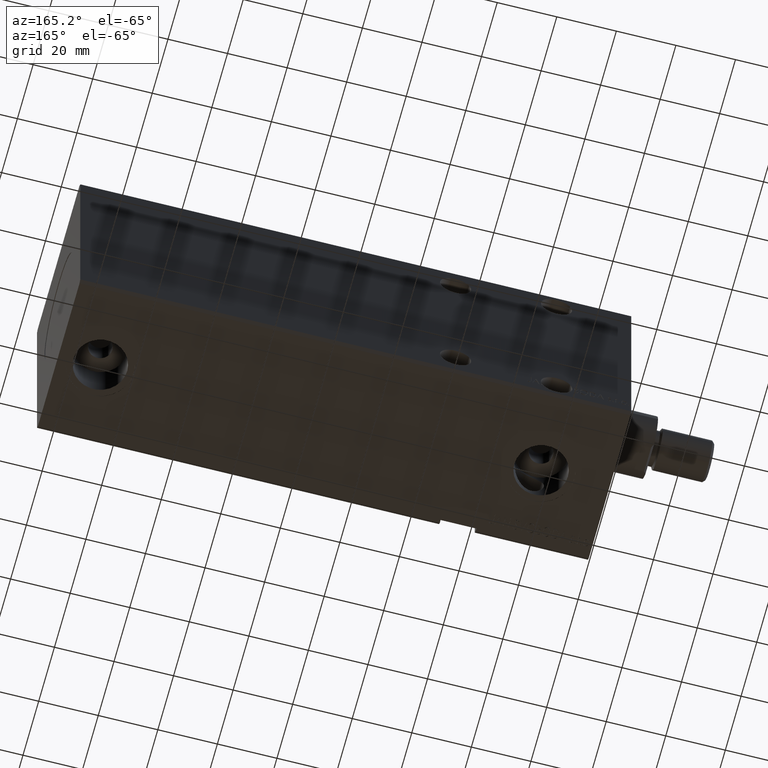
[diagram: clean part render]
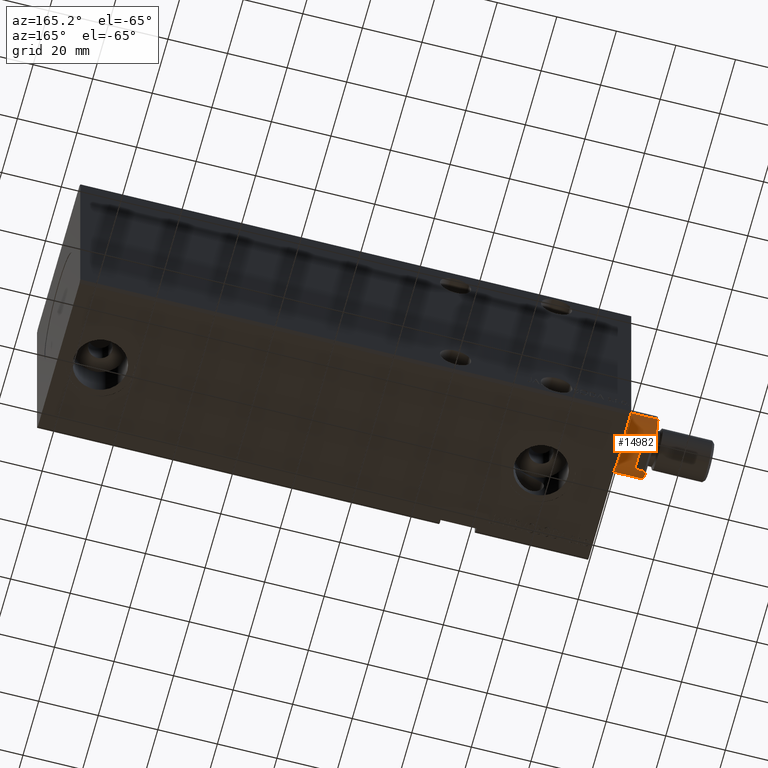
[diagram: same view with one face highlighted and labeled with its STEP entity id]
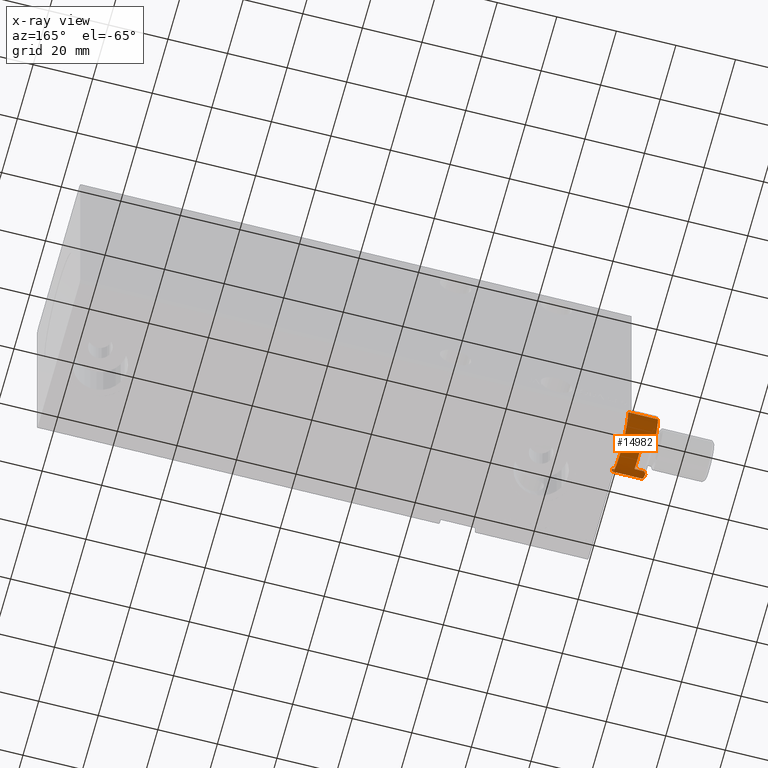
[diagram: x-ray of the same camera — body ghosted, the highlighted face saturated]
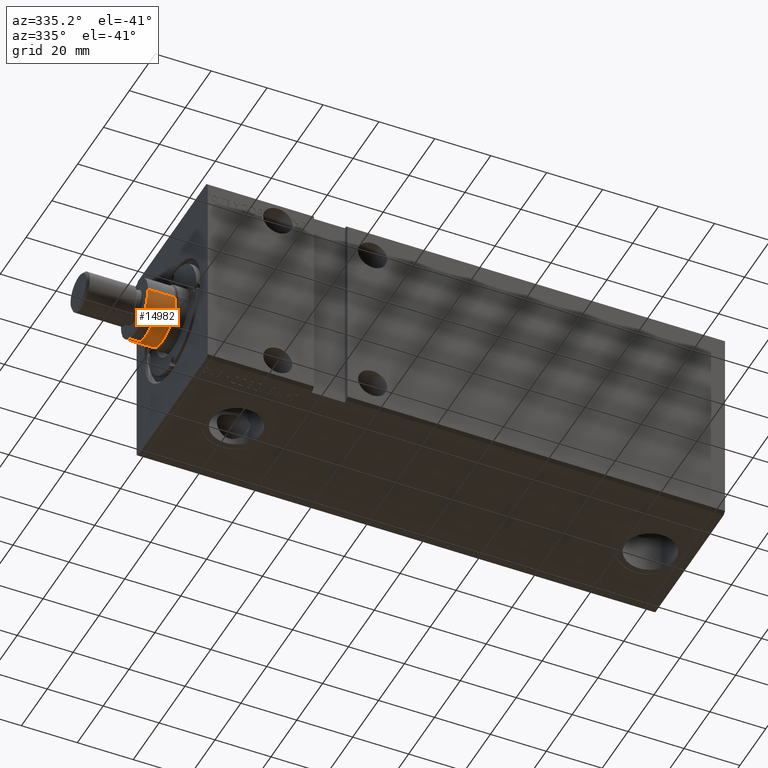
[diagram: same view with one face highlighted and labeled with its STEP entity id]
A machine part, auxiliary view. The second image highlights one B-rep face of the part: STEP entity #14982.
The next image is the same camera in x-ray: the body ghosted, the highlighted face saturated — about 2% of this face is hidden behind the body in this view.
A second angle (auxiliary view) of the same face is appended — the face is thin or edge-on in the first view.
In plain terms, the highlighted cylindrical surface (edge-blend (fillet) strip) has radius 10.46 mm, axis along (-1, -0, -0).
Its self-contained STEP definition (entity closure, byte-faithful):
#661 = CARTESIAN_POINT ( 'NONE',  ( 0.000000000000000000, -10.46000000000003105, 168.5000000000000000 ) ) ;
#707 = EDGE_CURVE ( 'NONE', #7318, #32483, #17686, .T. ) ;
#826 = DIRECTION ( 'NONE',  ( -0.000000000000000000, -1.830961800348780351E-16, 1.000000000000000000 ) ) ;
#1792 = LINE ( 'NONE', #10871, #26539 ) ;
#2046 = DIRECTION ( 'NONE',  ( 1.000000000000000000, 0.000000000000000000, 0.000000000000000000 ) ) ;
#2072 = CARTESIAN_POINT ( 'NONE',  ( -8.790000000000025793, -5.669876541865786379, 168.5000000000000000 ) ) ;
#2582 = DIRECTION ( 'NONE',  ( 0.000000000000000000, -1.000000000000000000, 0.000000000000000000 ) ) ;
#2622 = CARTESIAN_POINT ( 'NONE',  ( 0.000000000000000000, -3.085170633587695342E-14, 168.5000000000000000 ) ) ;
#2735 = CARTESIAN_POINT ( 'NONE',  ( -9.500000000000000000, 4.377396486497395323, 168.5000000000000000 ) ) ;
#2817 = CYLINDRICAL_SURFACE ( 'NONE', #39082, 10.46000000000000085 ) ;
#4140 = CARTESIAN_POINT ( 'NONE',  ( 1.280980551908131527E-15, 10.45999999999996888, 168.5000000000000000 ) ) ;
#4779 = CARTESIAN_POINT ( 'NONE',  ( -9.293949384395547852, 4.824575729748583619, 167.9960506156045312 ) ) ;
#5041 = CARTESIAN_POINT ( 'NONE',  ( 0.000000000000000000, 10.45999999999996888, 158.5000000000000000 ) ) ;
#5459 = EDGE_CURVE ( 'NONE', #9058, #21041, #8423, .T. ) ;
#5583 = LINE ( 'NONE', #5785, #37330 ) ;
#5785 = CARTESIAN_POINT ( 'NONE',  ( -9.500000000000000000, -4.377396486497458383, 168.5000000000000000 ) ) ;
#7318 = VERTEX_POINT ( 'NONE', #25877 ) ;
#7375 = EDGE_CURVE ( 'NONE', #29689, #9058, #31918, .T. ) ;
#7726 = CARTESIAN_POINT ( 'NONE',  ( -9.293949384395544300, -4.824575729748650232, 167.9960506156045312 ) ) ;
#8025 = DIRECTION ( 'NONE',  ( -0.000000000000000000, -1.830961800348780351E-16, 1.000000000000000000 ) ) ;
#8254 = ORIENTED_EDGE ( 'NONE', *, *, #28032, .F. ) ;
#8423 = LINE ( 'NONE', #20765, #9569 ) ;
#8653 = EDGE_CURVE ( 'NONE', #9762, #10954, #5583, .T. ) ;
#8668 = FACE_OUTER_BOUND ( 'NONE', #28902, .T. ) ;
#9040 = DIRECTION ( 'NONE',  ( -0.000000000000000000, -1.830961800348780351E-16, 1.000000000000000000 ) ) ;
#9058 = VERTEX_POINT ( 'NONE', #9522 ) ;
#9237 = CARTESIAN_POINT ( 'NONE',  ( 0.000000000000000000, -3.085170633587695342E-14, 168.5000000000000000 ) ) ;
#9522 = CARTESIAN_POINT ( 'NONE',  ( 1.314046015485110656E-15, -10.46000000000002750, 158.5000000000000000 ) ) ;
#9569 = VECTOR ( 'NONE', #30059, 1000.000000000000000 ) ;
#9762 = VERTEX_POINT ( 'NONE', #20712 ) ;
#10083 = CARTESIAN_POINT ( 'NONE',  ( -8.790000000000025793, -5.669876541865786379, 168.5000000000000000 ) ) ;
#10198 = ORIENTED_EDGE ( 'NONE', *, *, #707, .T. ) ;
#10291 = DIRECTION ( 'NONE',  ( 0.000000000000000000, -1.000000000000000000, 0.000000000000000000 ) ) ;
#10871 = CARTESIAN_POINT ( 'NONE',  ( 1.280980551908131527E-15, 10.45999999999996888, 168.5000000000000000 ) ) ;
#10954 = VERTEX_POINT ( 'NONE', #17884 ) ;
#11048 = ORIENTED_EDGE ( 'NONE', *, *, #18947, .F. ) ;
#12237 = DIRECTION ( 'NONE',  ( 0.000000000000000000, -1.000000000000000000, 0.000000000000000000 ) ) ;
#12439 = LINE ( 'NONE', #2735, #31305 ) ;
#14074 = CARTESIAN_POINT ( 'NONE',  ( -9.500000000000000000, 4.377396486497395323, 167.7900000000000489 ) ) ;
#14982 = ADVANCED_FACE ( 'NONE', ( #8668 ), #2817, .T. ) ;
#15152 = DIRECTION ( 'NONE',  ( 0.000000000000000000, -1.000000000000000000, 0.000000000000000000 ) ) ;
#15973 = ORIENTED_EDGE ( 'NONE', *, *, #8653, .T. ) ;
#17686 =( BOUNDED_CURVE ( )  B_SPLINE_CURVE ( 3, ( #14074, #4779, #20729, #23982 ),
 .UNSPECIFIED., .F., .T. ) 
 B_SPLINE_CURVE_WITH_KNOTS ( ( 4, 4 ),
 ( 3.573373807102883770, 3.714471135698162563 ),
 .UNSPECIFIED. ) 
 CURVE ( )  GEOMETRIC_REPRESENTATION_ITEM ( )  RATIONAL_B_SPLINE_CURVE ( ( 1.000000000000000000, 0.9983416499762386431, 0.9983416499762386431, 1.000000000000000000 ) ) 
 REPRESENTATION_ITEM ( '' )  );
#17812 = CARTESIAN_POINT ( 'NONE',  ( -9.056889589612573843, -5.256118063110211125, 168.2331104103874964 ) ) ;
#17884 = CARTESIAN_POINT ( 'NONE',  ( -9.500000000000000000, -4.377396486497457495, 164.5000000000000000 ) ) ;
#18006 = ORIENTED_EDGE ( 'NONE', *, *, #7375, .T. ) ;
#18705 = ORIENTED_EDGE ( 'NONE', *, *, #28212, .F. ) ;
#18947 = EDGE_CURVE ( 'NONE', #27408, #10954, #38214, .T. ) ;
#19192 = CIRCLE ( 'NONE', #26308, 10.46000000000000085 ) ;
#19305 = ORIENTED_EDGE ( 'NONE', *, *, #21137, .F. ) ;
#19772 = VERTEX_POINT ( 'NONE', #4140 ) ;
#20712 = CARTESIAN_POINT ( 'NONE',  ( -9.500000000000000000, -4.377396486497458383, 167.7900000000000489 ) ) ;
#20729 = CARTESIAN_POINT ( 'NONE',  ( -9.056889589612575620, 5.256118063110147176, 168.2331104103874964 ) ) ;
#20765 = CARTESIAN_POINT ( 'NONE',  ( 0.000000000000000000, -10.46000000000003105, 168.5000000000000000 ) ) ;
#21041 = VERTEX_POINT ( 'NONE', #661 ) ;
#21137 = EDGE_CURVE ( 'NONE', #29689, #19772, #1792, .T. ) ;
#23040 = ORIENTED_EDGE ( 'NONE', *, *, #36368, .T. ) ;
#23379 =( BOUNDED_CURVE ( )  B_SPLINE_CURVE ( 3, ( #2072, #17812, #7726, #36019 ),
 .UNSPECIFIED., .F., .T. ) 
 B_SPLINE_CURVE_WITH_KNOTS ( ( 4, 4 ),
 ( 2.568714171481423669, 2.709811500076702018 ),
 .UNSPECIFIED. ) 
 CURVE ( )  GEOMETRIC_REPRESENTATION_ITEM ( )  RATIONAL_B_SPLINE_CURVE ( ( 1.000000000000000000, 0.9983416499762386431, 0.9983416499762386431, 1.000000000000000000 ) ) 
 REPRESENTATION_ITEM ( '' )  );
#23982 = CARTESIAN_POINT ( 'NONE',  ( -8.790000000000025793, 5.669876541865724207, 168.5000000000000000 ) ) ;
#24169 = CARTESIAN_POINT ( 'NONE',  ( 0.000000000000000000, -3.085170633587695342E-14, 168.5000000000000000 ) ) ;
#24173 = DIRECTION ( 'NONE',  ( -0.000000000000000000, -1.830961800348780351E-16, 1.000000000000000000 ) ) ;
#24675 = DIRECTION ( 'NONE',  ( -0.000000000000000000, -1.830961800348780351E-16, 1.000000000000000000 ) ) ;
#25474 = CARTESIAN_POINT ( 'NONE',  ( 0.000000000000000000, -2.902074453552816907E-14, 158.5000000000000000 ) ) ;
#25476 = AXIS2_PLACEMENT_3D ( 'NONE', #25474, #826, #10291 ) ;
#25877 = CARTESIAN_POINT ( 'NONE',  ( -9.500000000000000000, 4.377396486497395323, 167.7900000000000489 ) ) ;
#26245 = ORIENTED_EDGE ( 'NONE', *, *, #5459, .T. ) ;
#26308 = AXIS2_PLACEMENT_3D ( 'NONE', #9237, #9040, #2582 ) ;
#26539 = VECTOR ( 'NONE', #8025, 1000.000000000000000 ) ;
#26828 = DIRECTION ( 'NONE',  ( 0.000000000000000000, 1.830961800348780351E-16, -1.000000000000000000 ) ) ;
#26928 = AXIS2_PLACEMENT_3D ( 'NONE', #24169, #33461, #12237 ) ;
#27408 = VERTEX_POINT ( 'NONE', #33453 ) ;
#27724 = VERTEX_POINT ( 'NONE', #10083 ) ;
#28032 = EDGE_CURVE ( 'NONE', #27724, #21041, #19192, .T. ) ;
#28212 = EDGE_CURVE ( 'NONE', #19772, #32483, #32715, .T. ) ;
#28902 = EDGE_LOOP ( 'NONE', ( #19305, #18006, #26245, #8254, #34977, #15973, #11048, #23040, #10198, #18705 ) ) ;
#29689 = VERTEX_POINT ( 'NONE', #5041 ) ;
#29731 = DIRECTION ( 'NONE',  ( 0.000000000000000000, 0.000000000000000000, 1.000000000000000000 ) ) ;
#30059 = DIRECTION ( 'NONE',  ( -0.000000000000000000, -1.830961800348780351E-16, 1.000000000000000000 ) ) ;
#30214 = EDGE_CURVE ( 'NONE', #27724, #9762, #23379, .T. ) ;
#31305 = VECTOR ( 'NONE', #24173, 1000.000000000000000 ) ;
#31918 = CIRCLE ( 'NONE', #25476, 10.45999999999999908 ) ;
#32452 = CARTESIAN_POINT ( 'NONE',  ( -8.790000000000025793, 5.669876541865724207, 168.5000000000000000 ) ) ;
#32483 = VERTEX_POINT ( 'NONE', #32452 ) ;
#32715 = CIRCLE ( 'NONE', #26928, 10.46000000000000085 ) ;
#33453 = CARTESIAN_POINT ( 'NONE',  ( -9.500000000000000000, 4.377396486497396211, 164.5000000000000000 ) ) ;
#33461 = DIRECTION ( 'NONE',  ( -0.000000000000000000, -1.830961800348780351E-16, 1.000000000000000000 ) ) ;
#33680 = AXIS2_PLACEMENT_3D ( 'NONE', #35993, #29731, #2046 ) ;
#34977 = ORIENTED_EDGE ( 'NONE', *, *, #30214, .T. ) ;
#35993 = CARTESIAN_POINT ( 'NONE',  ( 0.000000000000000000, -3.011932161573743842E-14, 164.5000000000000000 ) ) ;
#36019 = CARTESIAN_POINT ( 'NONE',  ( -9.500000000000000000, -4.377396486497458383, 167.7900000000000489 ) ) ;
#36368 = EDGE_CURVE ( 'NONE', #27408, #7318, #12439, .T. ) ;
#37330 = VECTOR ( 'NONE', #26828, 1000.000000000000000 ) ;
#38214 = CIRCLE ( 'NONE', #33680, 10.46000000000000085 ) ;
#39082 = AXIS2_PLACEMENT_3D ( 'NONE', #2622, #24675, #15152 ) ;